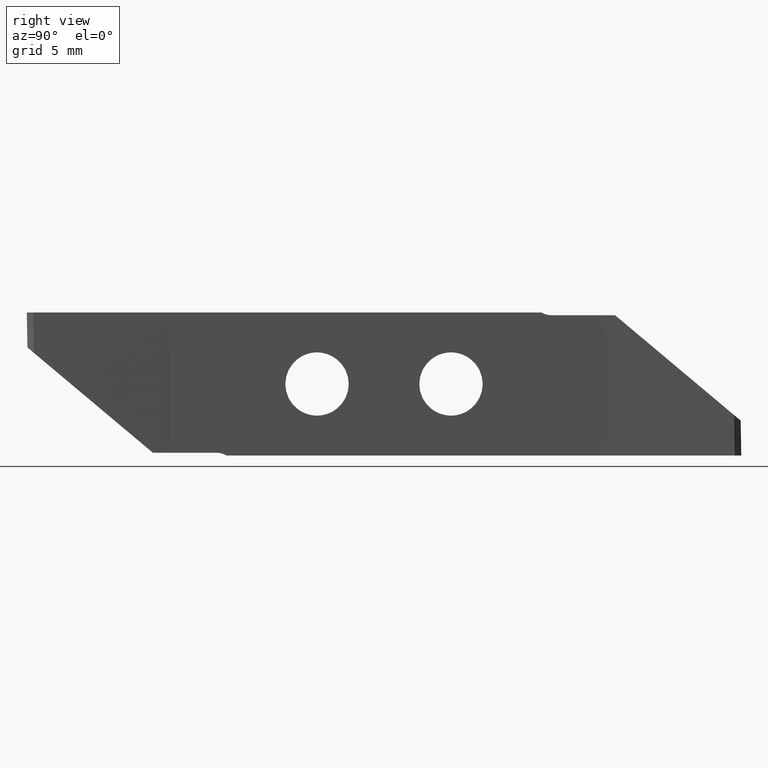
[diagram: clean part render]
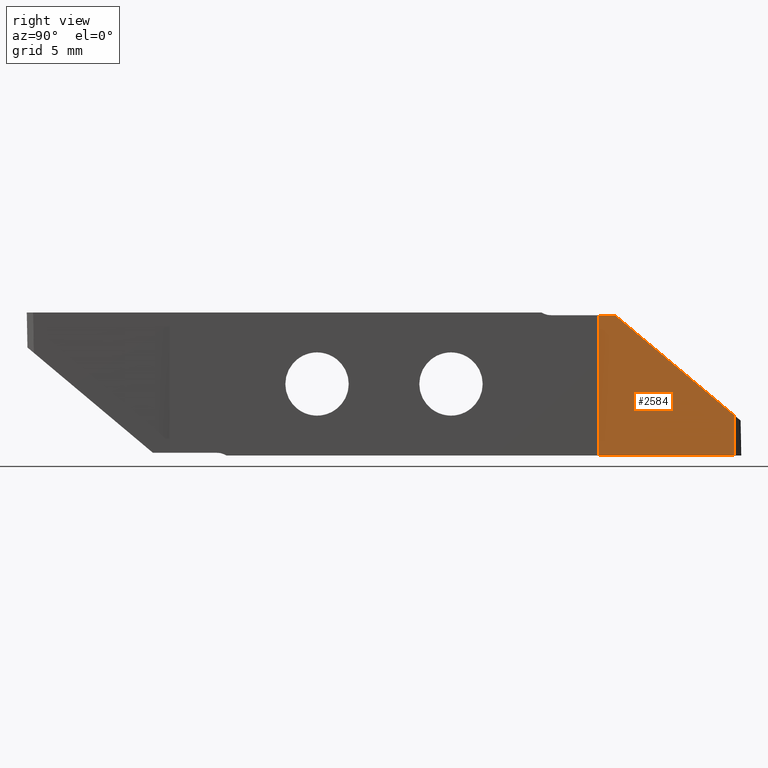
[diagram: same view with one face highlighted and labeled with its STEP entity id]
A machine part, right view. The second image highlights one B-rep face of the part: STEP entity #2584.
In plain terms, the highlighted planar face has unit normal (-0.9998, 0, -0.0175).
Its self-contained STEP definition (entity closure, byte-faithful):
#2356=CARTESIAN_POINT('',(3.392977711,32.93789639,-0.1500006693));
#2357=VERTEX_POINT('',#2356);
#2368=CARTESIAN_POINT('',(3.392977711,32.,-0.1500006693));
#2369=DIRECTION('',(0.,1.,0.));
#2370=VECTOR('',#2369,0.9378963886);
#2371=LINE('',#2368,#2370);
#2372=CARTESIAN_POINT('',(3.392977711,32.,-0.1500006693));
#2373=VERTEX_POINT('',#2372);
#2374=EDGE_CURVE('',#2373,#2357,#2371,.T.);
#2418=CARTESIAN_POINT('',(3.529998422,32.,-8.000000696));
#2419=VERTEX_POINT('',#2418);
#2455=CARTESIAN_POINT('',(3.529998422,32.,-8.000000696));
#2456=DIRECTION('',(-0.0174522092,0.,0.9998476986));
#2457=VECTOR('',#2456,7.851195775);
#2458=LINE('',#2455,#2457);
#2459=EDGE_CURVE('',#2419,#2373,#2458,.T.);
#2480=CARTESIAN_POINT('',(3.477196384,35.42180736,-4.974939764));
#2481=DIRECTION('',(-0.9998476986,0.,-0.0174522092));
#2482=DIRECTION('',(-0.01744955121,0.,0.9996954204));
#2483=AXIS2_PLACEMENT_3D('',#2480,#2481,#2482);
#2484=PLANE('',#2483);
#2485=CARTESIAN_POINT('',(3.529998422,39.,-8.000000696));
#2486=DIRECTION('',(0.,-1.,0.));
#2487=VECTOR('',#2486,7.);
#2488=LINE('',#2485,#2487);
#2489=CARTESIAN_POINT('',(3.529998422,39.,-8.000000696));
#2490=VERTEX_POINT('',#2489);
#2491=EDGE_CURVE('',#2490,#2419,#2488,.T.);
#2492=ORIENTED_EDGE('Edge 498',*,*,#2491,.F.);
#2501=ORIENTED_EDGE('Edge 1162',*,*,#2459,.F.);
#2510=ORIENTED_EDGE('Edge 1187',*,*,#2374,.F.);
#2519=CARTESIAN_POINT('',(3.392977711,32.93789639,-0.1500006693));
#2520=DIRECTION('',(0.01121906652,0.7659962305,-0.6427471567));
#2521=VECTOR('',#2520,8.704619328);
#2522=LINE('',#2519,#2521);
#2523=CARTESIAN_POINT('',(3.490635414,39.60560198,-5.744869993));
#2524=VERTEX_POINT('',#2523);
#2525=EDGE_CURVE('',#2357,#2524,#2522,.T.);
#2526=ORIENTED_EDGE('Edge 1192',*,*,#2525,.F.);
#2535=CARTESIAN_POINT('',(3.529998313,39.64361472,-7.999994476));
#2536=DIRECTION('',(-0.01744973114,-0.0168512001,0.9997057287));
#2537=VECTOR('',#2536,2.255788297);
#2538=LINE('',#2535,#2537);
#2539=CARTESIAN_POINT('',(3.529998313,39.64361472,-7.999994476));
#2540=VERTEX_POINT('',#2539);
#2541=EDGE_CURVE('',#2540,#2524,#2538,.T.);
#2542=ORIENTED_EDGE('Edge 1197',*,*,#2541,.T.);
#2551=CARTESIAN_POINT('',(3.529998117,39.00059056,-7.999983253));
#2552=DIRECTION('',(3.046417505E-07,0.9999999998,-1.745329258E-05));
#2553=VECTOR('',#2552,0.6430241615);
#2554=LINE('',#2551,#2553);
#2555=CARTESIAN_POINT('',(3.529998117,39.00059056,-7.999983253));
#2556=VERTEX_POINT('',#2555);
#2557=EDGE_CURVE('',#2556,#2540,#2554,.T.);
#2558=ORIENTED_EDGE('Edge 1202',*,*,#2557,.T.);
#2567=CARTESIAN_POINT('',(3.529998422,39.,-8.000000696));
#2568=CARTESIAN_POINT('',(3.529998219,39.00019665,-7.999989066));
#2569=CARTESIAN_POINT('',(3.529998117,39.00039356,-7.99998325));
#2570=CARTESIAN_POINT('',(3.529998117,39.00059056,-7.999983253));
#2571=(BOUNDED_CURVE()B_SPLINE_CURVE(3,(#2567,#2568,#2569,#2570),.UNSPECIFIED.,.F.,.F.)B_SPLINE_CURVE_WITH_KNOTS((4,4),(0.,1.),.UNSPECIFIED.)CURVE()GEOMETRIC_REPRESENTATION_ITEM()RATIONAL_B_SPLINE_CURVE((1.,0.9997090483,0.9997090483,1.))REPRESENTATION_ITEM('')
);
#2572=EDGE_CURVE('',#2490,#2556,#2571,.T.);
#2573=ORIENTED_EDGE('Edge 1207',*,*,#2572,.T.);
#2582=EDGE_LOOP('',(#2573,#2558,#2542,#2526,#2510,#2501,#2492));
#2583=FACE_OUTER_BOUND('Loop 1208',#2582,.T.);
#2584=ADVANCED_FACE('Face 1209',(#2583),#2484,.F.);